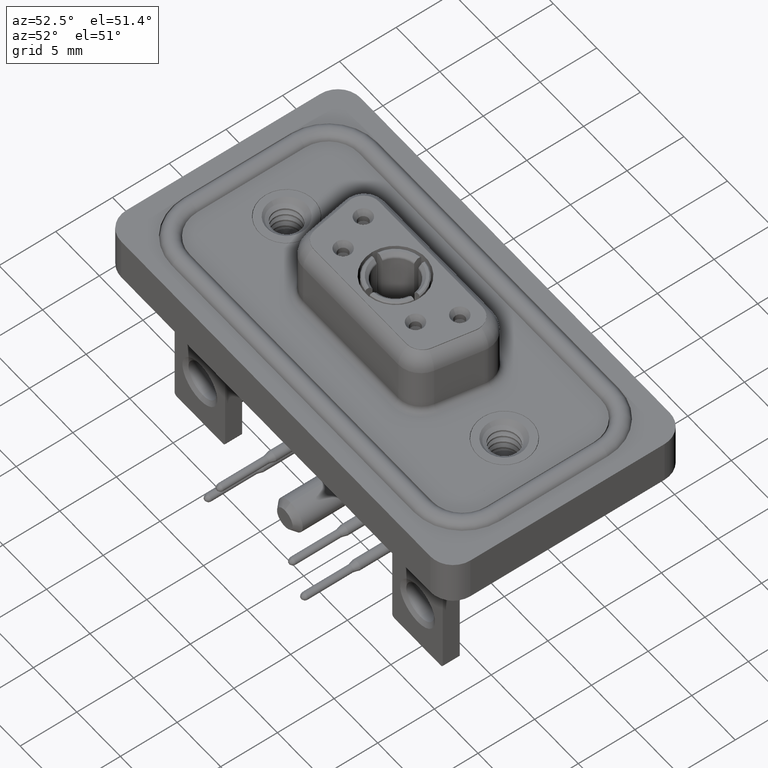
[diagram: clean part render]
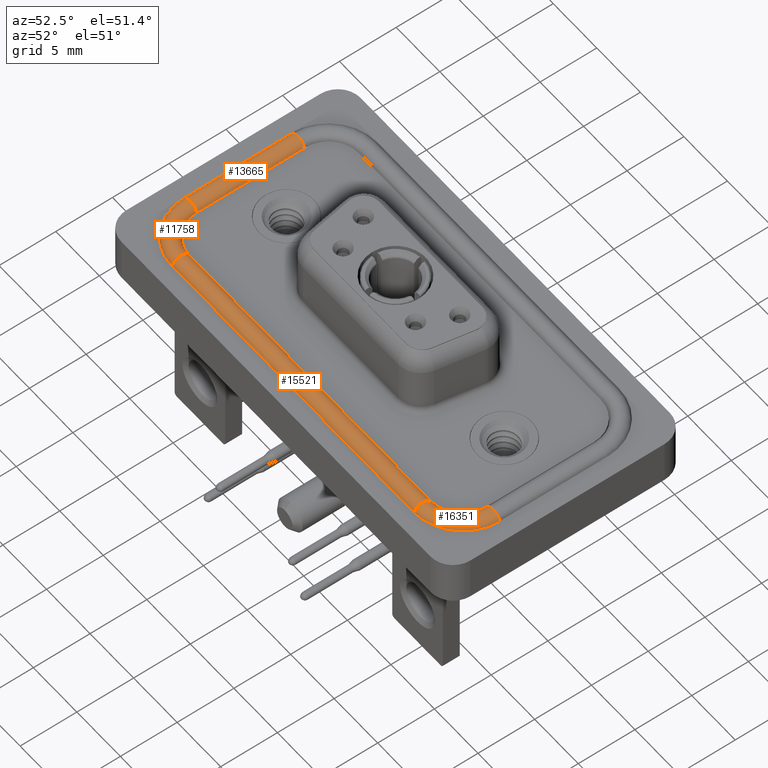
[diagram: same view with one multi-face feature highlighted, each face labeled with its STEP entity id]
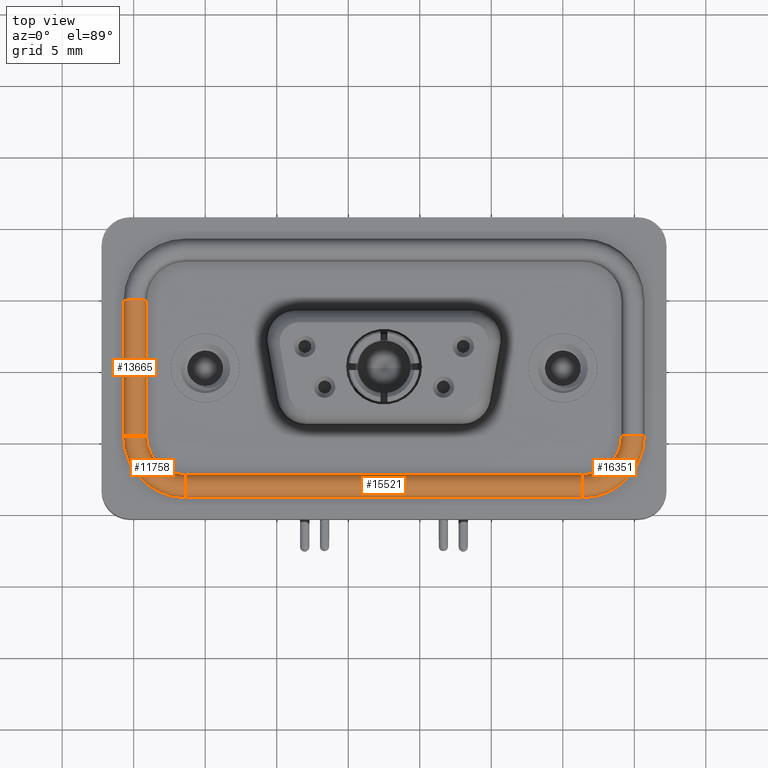
[diagram: same view with one multi-face feature highlighted, each face labeled with its STEP entity id]
A machine part, auxiliary view. The highlighted faces form ONE feature: a constant-radius fillet chain: 4 tangent blend faces with common blend radius 0.8 mm. The faces share edges in the B-rep.
A second angle (top view) of the same feature is appended — it is thin or edge-on in the first view.
Their STEP definitions:
[1] entity #13665 (Cylinder):
#46 = CARTESIAN_POINT ( 'NONE',  ( -5.699999999999995737, -4.749999999999999112, 0.09999999999999668876 ) ) ;
#830 = DIRECTION ( 'NONE',  ( 0.000000000000000000, 0.000000000000000000, -1.000000000000000000 ) ) ;
#1307 = AXIS2_PLACEMENT_3D ( 'NONE', #13167, #13684, #5619 ) ;
#1476 = CARTESIAN_POINT ( 'NONE',  ( -5.699999999999993960, 4.750000000000000888, 0.09999999999999668876 ) ) ;
#1987 = CIRCLE ( 'NONE', #1307, 0.7999999999999997113 ) ;
#2627 = CARTESIAN_POINT ( 'NONE',  ( -4.899999999999996803, -4.749999999999999112, 0.09999999999999668876 ) ) ;
#2933 = VERTEX_POINT ( 'NONE', #46 ) ;
#3429 = EDGE_CURVE ( 'NONE', #2933, #10764, #18127, .T. ) ;
#3784 = FACE_OUTER_BOUND ( 'NONE', #5893, .T. ) ;
#4189 = DIRECTION ( 'NONE',  ( -1.000000000000000000, 0.000000000000000000, 0.000000000000000000 ) ) ;
#4503 = VERTEX_POINT ( 'NONE', #10035 ) ;
#4688 = ORIENTED_EDGE ( 'NONE', *, *, #11591, .F. ) ;
#5538 = CARTESIAN_POINT ( 'NONE',  ( -4.899999999999996803, -4.749999999999999112, 0.09999999999999668876 ) ) ;
#5619 = DIRECTION ( 'NONE',  ( 0.000000000000000000, 0.000000000000000000, -1.000000000000000000 ) ) ;
#5893 = EDGE_LOOP ( 'NONE', ( #18982, #6212, #4688, #20395 ) ) ;
#6147 = CIRCLE ( 'NONE', #12165, 0.7999999999999997113 ) ;
#6152 = CARTESIAN_POINT ( 'NONE',  ( -4.099999999999996980, -4.749999999999999112, 0.09999999999999678590 ) ) ;
#6212 = ORIENTED_EDGE ( 'NONE', *, *, #16600, .T. ) ;
#8804 = VECTOR ( 'NONE', #12048, 1000.000000000000000 ) ;
#10035 = CARTESIAN_POINT ( 'NONE',  ( -4.099999999999995204, 4.750000000000000888, 0.09999999999999678590 ) ) ;
#10764 = VERTEX_POINT ( 'NONE', #1476 ) ;
#11591 = EDGE_CURVE ( 'NONE', #10764, #4503, #1987, .T. ) ;
#11835 = CYLINDRICAL_SURFACE ( 'NONE', #16563, 0.7999999999999994893 ) ;
#12048 = DIRECTION ( 'NONE',  ( 1.826024711554533913E-16, 1.000000000000000000, -0.000000000000000000 ) ) ;
#12165 = AXIS2_PLACEMENT_3D ( 'NONE', #5538, #16628, #830 ) ;
#12540 = DIRECTION ( 'NONE',  ( 1.826024711554533913E-16, 1.000000000000000000, -0.000000000000000000 ) ) ;
#13167 = CARTESIAN_POINT ( 'NONE',  ( -4.899999999999995026, 4.750000000000000888, 0.09999999999999668876 ) ) ;
#13410 = CARTESIAN_POINT ( 'NONE',  ( -5.699999999999995737, -4.749999999999999112, 0.09999999999999668876 ) ) ;
#13665 = ADVANCED_FACE ( 'NONE', ( #3784 ), #11835, .T. ) ;
#13684 = DIRECTION ( 'NONE',  ( 1.202023461203164513E-16, 1.000000000000000000, 0.000000000000000000 ) ) ;
#15851 = VECTOR ( 'NONE', #12540, 1000.000000000000000 ) ;
#16355 = EDGE_CURVE ( 'NONE', #2933, #17940, #6147, .T. ) ;
#16563 = AXIS2_PLACEMENT_3D ( 'NONE', #2627, #18539, #4189 ) ;
#16600 = EDGE_CURVE ( 'NONE', #17940, #4503, #20510, .T. ) ;
#16628 = DIRECTION ( 'NONE',  ( -6.240012503513693999E-17, 1.000000000000000000, 0.000000000000000000 ) ) ;
#17940 = VERTEX_POINT ( 'NONE', #19154 ) ;
#18127 = LINE ( 'NONE', #13410, #8804 ) ;
#18539 = DIRECTION ( 'NONE',  ( 1.826024711554533913E-16, 1.000000000000000000, -0.000000000000000000 ) ) ;
#18982 = ORIENTED_EDGE ( 'NONE', *, *, #16355, .T. ) ;
#19154 = CARTESIAN_POINT ( 'NONE',  ( -4.099999999999996980, -4.749999999999999112, 0.09999999999999678590 ) ) ;
#20395 = ORIENTED_EDGE ( 'NONE', *, *, #3429, .F. ) ;
#20510 = LINE ( 'NONE', #6152, #15851 ) ;
[2] entity #11758 (Torus):
#46 = CARTESIAN_POINT ( 'NONE',  ( -5.699999999999995737, -4.749999999999999112, 0.09999999999999668876 ) ) ;
#830 = DIRECTION ( 'NONE',  ( 0.000000000000000000, 0.000000000000000000, -1.000000000000000000 ) ) ;
#2414 = EDGE_LOOP ( 'NONE', ( #8601, #7375, #12842, #15984 ) ) ;
#2933 = VERTEX_POINT ( 'NONE', #46 ) ;
#3107 = CIRCLE ( 'NONE', #18468, 0.7999999999999997113 ) ;
#3258 = CARTESIAN_POINT ( 'NONE',  ( -1.399999999999999245, -4.749999999999999112, 0.09999999999999678590 ) ) ;
#4333 = TOROIDAL_SURFACE ( 'NONE', #13340, 3.499999999999996003, 0.7999999999999997113 ) ;
#4907 = VERTEX_POINT ( 'NONE', #19741 ) ;
#5538 = CARTESIAN_POINT ( 'NONE',  ( -4.899999999999996803, -4.749999999999999112, 0.09999999999999668876 ) ) ;
#5589 = CARTESIAN_POINT ( 'NONE',  ( -1.399999999999999911, -8.249999999999994671, 0.09999999999999668876 ) ) ;
#6147 = CIRCLE ( 'NONE', #12165, 0.7999999999999997113 ) ;
#6180 = CIRCLE ( 'NONE', #15533, 4.299999999999995381 ) ;
#6935 = DIRECTION ( 'NONE',  ( -1.000000000000000000, 0.000000000000000000, 0.000000000000000000 ) ) ;
#7034 = DIRECTION ( 'NONE',  ( -0.000000000000000000, -0.000000000000000000, -1.000000000000000000 ) ) ;
#7375 = ORIENTED_EDGE ( 'NONE', *, *, #8888, .T. ) ;
#8601 = ORIENTED_EDGE ( 'NONE', *, *, #17195, .F. ) ;
#8888 = EDGE_CURVE ( 'NONE', #4907, #10811, #3107, .T. ) ;
#9266 = DIRECTION ( 'NONE',  ( -0.000000000000000000, -0.000000000000000000, -1.000000000000000000 ) ) ;
#10811 = VERTEX_POINT ( 'NONE', #17491 ) ;
#10881 = CIRCLE ( 'NONE', #11546, 2.699999999999996625 ) ;
#11194 = DIRECTION ( 'NONE',  ( -1.000000000000000000, 0.000000000000000000, 0.000000000000000000 ) ) ;
#11434 = CARTESIAN_POINT ( 'NONE',  ( -1.399999999999999245, -4.749999999999999112, 0.09999999999999668876 ) ) ;
#11546 = AXIS2_PLACEMENT_3D ( 'NONE', #3258, #14344, #11194 ) ;
#11758 = ADVANCED_FACE ( 'NONE', ( #18709 ), #4333, .T. ) ;
#12165 = AXIS2_PLACEMENT_3D ( 'NONE', #5538, #16628, #830 ) ;
#12183 = DIRECTION ( 'NONE',  ( 0.000000000000000000, 0.000000000000000000, -1.000000000000000000 ) ) ;
#12842 = ORIENTED_EDGE ( 'NONE', *, *, #15071, .T. ) ;
#13340 = AXIS2_PLACEMENT_3D ( 'NONE', #15449, #9266, #13993 ) ;
#13993 = DIRECTION ( 'NONE',  ( -1.000000000000000000, 0.000000000000000000, 0.000000000000000000 ) ) ;
#14344 = DIRECTION ( 'NONE',  ( -0.000000000000000000, -0.000000000000000000, -1.000000000000000000 ) ) ;
#15071 = EDGE_CURVE ( 'NONE', #10811, #17940, #10881, .T. ) ;
#15449 = CARTESIAN_POINT ( 'NONE',  ( -1.399999999999999245, -4.749999999999999112, 0.09999999999999668876 ) ) ;
#15533 = AXIS2_PLACEMENT_3D ( 'NONE', #11434, #7034, #6935 ) ;
#15984 = ORIENTED_EDGE ( 'NONE', *, *, #16355, .F. ) ;
#16355 = EDGE_CURVE ( 'NONE', #2933, #17940, #6147, .T. ) ;
#16628 = DIRECTION ( 'NONE',  ( -6.240012503513693999E-17, 1.000000000000000000, 0.000000000000000000 ) ) ;
#17195 = EDGE_CURVE ( 'NONE', #4907, #2933, #6180, .T. ) ;
#17491 = CARTESIAN_POINT ( 'NONE',  ( -1.399999999999999911, -7.449999999999995737, 0.09999999999999678590 ) ) ;
#17940 = VERTEX_POINT ( 'NONE', #19154 ) ;
#18468 = AXIS2_PLACEMENT_3D ( 'NONE', #5589, #20046, #12183 ) ;
#18709 = FACE_OUTER_BOUND ( 'NONE', #2414, .T. ) ;
#19154 = CARTESIAN_POINT ( 'NONE',  ( -4.099999999999996980, -4.749999999999999112, 0.09999999999999678590 ) ) ;
#19741 = CARTESIAN_POINT ( 'NONE',  ( -1.399999999999999911, -9.049999999999995381, 0.09999999999999668876 ) ) ;
#20046 = DIRECTION ( 'NONE',  ( -1.000000000000000000, 0.000000000000000000, 0.000000000000000000 ) ) ;
[3] entity #15521 (Cylinder):
#1227 = DIRECTION ( 'NONE',  ( -1.000000000000000000, 6.240012503513693999E-17, -0.000000000000000000 ) ) ;
#2271 = CARTESIAN_POINT ( 'NONE',  ( 26.40000000000000213, -8.249999999999996447, 0.09999999999999668876 ) ) ;
#2492 = LINE ( 'NONE', #8862, #10545 ) ;
#2833 = CIRCLE ( 'NONE', #7492, 0.7999999999999997113 ) ;
#3107 = CIRCLE ( 'NONE', #18468, 0.7999999999999997113 ) ;
#3997 = ORIENTED_EDGE ( 'NONE', *, *, #8888, .F. ) ;
#4049 = DIRECTION ( 'NONE',  ( 0.000000000000000000, 0.000000000000000000, -1.000000000000000000 ) ) ;
#4236 = AXIS2_PLACEMENT_3D ( 'NONE', #9065, #1227, #7613 ) ;
#4907 = VERTEX_POINT ( 'NONE', #19741 ) ;
#5184 = CARTESIAN_POINT ( 'NONE',  ( 26.40000000000000213, -7.449999999999997513, 0.09999999999999678590 ) ) ;
#5589 = CARTESIAN_POINT ( 'NONE',  ( -1.399999999999999911, -8.249999999999994671, 0.09999999999999668876 ) ) ;
#6046 = DIRECTION ( 'NONE',  ( -1.000000000000000000, 6.240012503513693999E-17, -0.000000000000000000 ) ) ;
#6316 = VECTOR ( 'NONE', #6046, 1000.000000000000000 ) ;
#6566 = VERTEX_POINT ( 'NONE', #9394 ) ;
#7492 = AXIS2_PLACEMENT_3D ( 'NONE', #2271, #12102, #4049 ) ;
#7613 = DIRECTION ( 'NONE',  ( 0.000000000000000000, -1.000000000000000000, 0.000000000000000000 ) ) ;
#8755 = VERTEX_POINT ( 'NONE', #5184 ) ;
#8862 = CARTESIAN_POINT ( 'NONE',  ( 26.40000000000000213, -7.449999999999997513, 0.09999999999999678590 ) ) ;
#8888 = EDGE_CURVE ( 'NONE', #4907, #10811, #3107, .T. ) ;
#9065 = CARTESIAN_POINT ( 'NONE',  ( 26.40000000000000213, -8.249999999999996447, 0.09999999999999668876 ) ) ;
#9394 = CARTESIAN_POINT ( 'NONE',  ( 26.40000000000000213, -9.049999999999997158, 0.09999999999999668876 ) ) ;
#9649 = ORIENTED_EDGE ( 'NONE', *, *, #11254, .F. ) ;
#10545 = VECTOR ( 'NONE', #20086, 1000.000000000000000 ) ;
#10584 = EDGE_LOOP ( 'NONE', ( #16472, #19194, #3997, #9649 ) ) ;
#10811 = VERTEX_POINT ( 'NONE', #17491 ) ;
#11254 = EDGE_CURVE ( 'NONE', #6566, #4907, #14227, .T. ) ;
#12102 = DIRECTION ( 'NONE',  ( -1.000000000000000000, -6.240012503513693999E-17, 0.000000000000000000 ) ) ;
#12183 = DIRECTION ( 'NONE',  ( 0.000000000000000000, 0.000000000000000000, -1.000000000000000000 ) ) ;
#14227 = LINE ( 'NONE', #20410, #6316 ) ;
#15356 = EDGE_CURVE ( 'NONE', #8755, #10811, #2492, .T. ) ;
#15521 = ADVANCED_FACE ( 'NONE', ( #17027 ), #15572, .T. ) ;
#15572 = CYLINDRICAL_SURFACE ( 'NONE', #4236, 0.8000000000000003775 ) ;
#16472 = ORIENTED_EDGE ( 'NONE', *, *, #16863, .T. ) ;
#16863 = EDGE_CURVE ( 'NONE', #6566, #8755, #2833, .T. ) ;
#17027 = FACE_OUTER_BOUND ( 'NONE', #10584, .T. ) ;
#17491 = CARTESIAN_POINT ( 'NONE',  ( -1.399999999999999911, -7.449999999999995737, 0.09999999999999678590 ) ) ;
#18468 = AXIS2_PLACEMENT_3D ( 'NONE', #5589, #20046, #12183 ) ;
#19194 = ORIENTED_EDGE ( 'NONE', *, *, #15356, .T. ) ;
#19741 = CARTESIAN_POINT ( 'NONE',  ( -1.399999999999999911, -9.049999999999995381, 0.09999999999999668876 ) ) ;
#20046 = DIRECTION ( 'NONE',  ( -1.000000000000000000, 0.000000000000000000, 0.000000000000000000 ) ) ;
#20086 = DIRECTION ( 'NONE',  ( -1.000000000000000000, 6.240012503513693999E-17, -0.000000000000000000 ) ) ;
#20410 = CARTESIAN_POINT ( 'NONE',  ( 26.40000000000000213, -9.049999999999997158, 0.09999999999999668876 ) ) ;
[4] entity #16351 (Torus):
#298 = DIRECTION ( 'NONE',  ( 0.000000000000000000, 0.000000000000000000, -1.000000000000000000 ) ) ;
#404 = CARTESIAN_POINT ( 'NONE',  ( 26.40000000000000213, -4.749999999999999112, 0.09999999999999668876 ) ) ;
#467 = AXIS2_PLACEMENT_3D ( 'NONE', #2613, #13289, #8570 ) ;
#1876 = DIRECTION ( 'NONE',  ( -1.000000000000000000, 0.000000000000000000, 0.000000000000000000 ) ) ;
#1939 = CARTESIAN_POINT ( 'NONE',  ( 26.40000000000000213, -4.749999999999999112, 0.09999999999999678590 ) ) ;
#2164 = AXIS2_PLACEMENT_3D ( 'NONE', #1939, #16169, #10186 ) ;
#2271 = CARTESIAN_POINT ( 'NONE',  ( 26.40000000000000213, -8.249999999999996447, 0.09999999999999668876 ) ) ;
#2613 = CARTESIAN_POINT ( 'NONE',  ( 26.40000000000000213, -4.749999999999999112, 0.09999999999999668876 ) ) ;
#2833 = CIRCLE ( 'NONE', #7492, 0.7999999999999997113 ) ;
#2844 = EDGE_LOOP ( 'NONE', ( #20112, #7914, #14040, #15633 ) ) ;
#2920 = CARTESIAN_POINT ( 'NONE',  ( 29.10000000000000142, -4.749999999999999112, 0.09999999999999678590 ) ) ;
#3948 = VERTEX_POINT ( 'NONE', #2920 ) ;
#4049 = DIRECTION ( 'NONE',  ( 0.000000000000000000, 0.000000000000000000, -1.000000000000000000 ) ) ;
#4659 = CARTESIAN_POINT ( 'NONE',  ( 30.69999999999999929, -4.749999999999999112, 0.09999999999999668876 ) ) ;
#4909 = CARTESIAN_POINT ( 'NONE',  ( 29.89999999999999858, -4.749999999999999112, 0.09999999999999668876 ) ) ;
#5184 = CARTESIAN_POINT ( 'NONE',  ( 26.40000000000000213, -7.449999999999997513, 0.09999999999999678590 ) ) ;
#6566 = VERTEX_POINT ( 'NONE', #9394 ) ;
#7492 = AXIS2_PLACEMENT_3D ( 'NONE', #2271, #12102, #4049 ) ;
#7914 = ORIENTED_EDGE ( 'NONE', *, *, #11485, .T. ) ;
#8570 = DIRECTION ( 'NONE',  ( -1.000000000000000000, 0.000000000000000000, 0.000000000000000000 ) ) ;
#8755 = VERTEX_POINT ( 'NONE', #5184 ) ;
#9394 = CARTESIAN_POINT ( 'NONE',  ( 26.40000000000000213, -9.049999999999997158, 0.09999999999999668876 ) ) ;
#9992 = CIRCLE ( 'NONE', #10633, 0.7999999999999997113 ) ;
#10186 = DIRECTION ( 'NONE',  ( -1.000000000000000000, 0.000000000000000000, 0.000000000000000000 ) ) ;
#10633 = AXIS2_PLACEMENT_3D ( 'NONE', #4909, #20723, #298 ) ;
#11242 = CIRCLE ( 'NONE', #20613, 4.299999999999994493 ) ;
#11485 = EDGE_CURVE ( 'NONE', #12981, #3948, #9992, .T. ) ;
#12102 = DIRECTION ( 'NONE',  ( -1.000000000000000000, -6.240012503513693999E-17, 0.000000000000000000 ) ) ;
#12981 = VERTEX_POINT ( 'NONE', #4659 ) ;
#13289 = DIRECTION ( 'NONE',  ( -0.000000000000000000, -0.000000000000000000, -1.000000000000000000 ) ) ;
#14040 = ORIENTED_EDGE ( 'NONE', *, *, #14301, .T. ) ;
#14301 = EDGE_CURVE ( 'NONE', #3948, #8755, #15867, .T. ) ;
#15633 = ORIENTED_EDGE ( 'NONE', *, *, #16863, .F. ) ;
#15867 = CIRCLE ( 'NONE', #2164, 2.699999999999997513 ) ;
#16169 = DIRECTION ( 'NONE',  ( -0.000000000000000000, -0.000000000000000000, -1.000000000000000000 ) ) ;
#16351 = ADVANCED_FACE ( 'NONE', ( #18207 ), #19867, .T. ) ;
#16863 = EDGE_CURVE ( 'NONE', #6566, #8755, #2833, .T. ) ;
#18207 = FACE_OUTER_BOUND ( 'NONE', #2844, .T. ) ;
#18510 = EDGE_CURVE ( 'NONE', #12981, #6566, #11242, .T. ) ;
#19568 = DIRECTION ( 'NONE',  ( -0.000000000000000000, -0.000000000000000000, -1.000000000000000000 ) ) ;
#19867 = TOROIDAL_SURFACE ( 'NONE', #467, 3.499999999999996003, 0.7999999999999997113 ) ;
#20112 = ORIENTED_EDGE ( 'NONE', *, *, #18510, .F. ) ;
#20613 = AXIS2_PLACEMENT_3D ( 'NONE', #404, #19568, #1876 ) ;
#20723 = DIRECTION ( 'NONE',  ( 4.276050673460436980E-16, -1.000000000000000000, 0.000000000000000000 ) ) ;